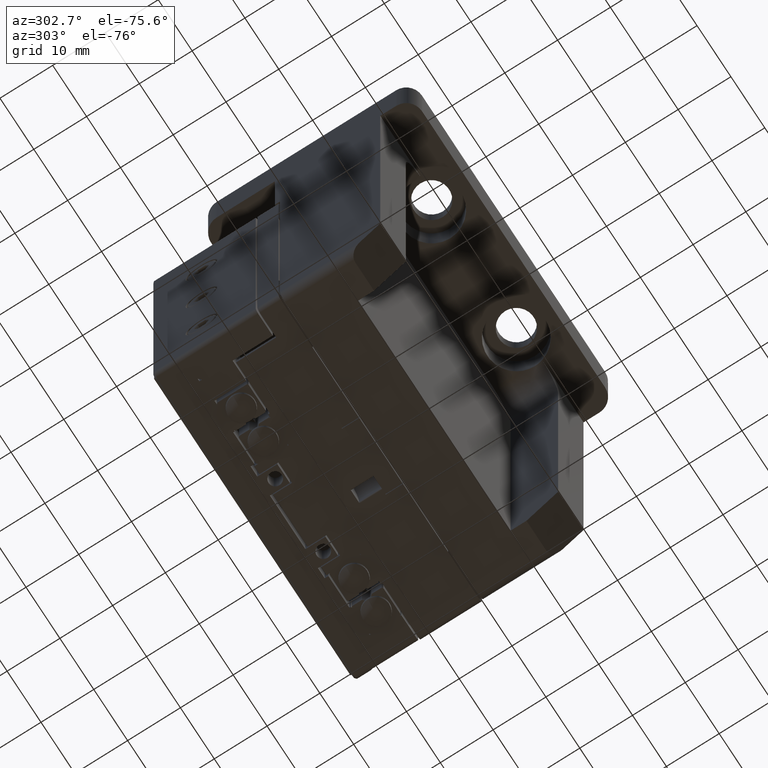
[diagram: clean part render]
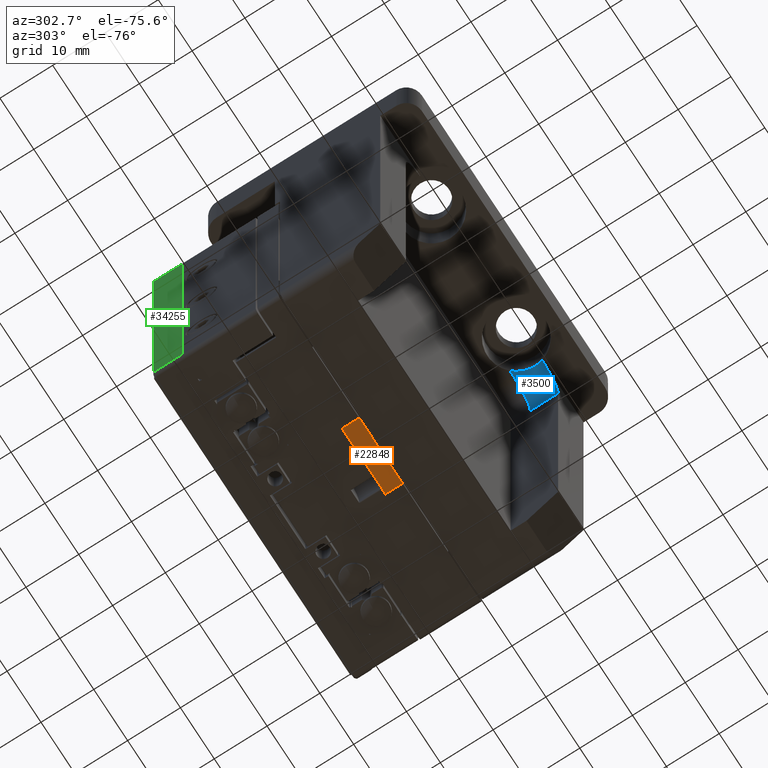
[diagram: same view with three faces highlighted in distinct colors, each labeled with its STEP entity id]
A machine part, auxiliary view with three faces highlighted in distinct colors.
Their STEP definitions:

[orange] entity #22848 — the highlighted planar face has unit normal (0, 0, 1).
#327 = DIRECTION ( 'NONE',  ( 1.000000000000000000, -6.982962677686266711E-15, -3.491481338843133355E-15 ) ) ;
#362 = DIRECTION ( 'NONE',  ( -6.982962677686266711E-15, -1.000000000000000000, 2.438088387897967896E-29 ) ) ;
#391 = FACE_OUTER_BOUND ( 'NONE', #31615, .T. ) ;
#1061 = VERTEX_POINT ( 'NONE', #34232 ) ;
#1591 = VERTEX_POINT ( 'NONE', #27273 ) ;
#2057 = DIRECTION ( 'NONE',  ( -1.000000000000000000, 6.982962677686266711E-15, 3.491481338843133355E-15 ) ) ;
#3485 = CARTESIAN_POINT ( 'NONE',  ( 8.758002419351393897, -9.325813218244359604, 30.00000000000159517 ) ) ;
#5848 = EDGE_CURVE ( 'NONE', #1591, #20111, #30753, .T. ) ;
#6218 = DIRECTION ( 'NONE',  ( 3.491481338843133355E-15, 0.000000000000000000, 1.000000000000000000 ) ) ;
#8126 = CARTESIAN_POINT ( 'NONE',  ( -4.041997580648604149, -9.325813218244270786, 30.00000000000164135 ) ) ;
#11050 = CARTESIAN_POINT ( 'NONE',  ( -18.14199758064860646, -9.325813218244171310, 30.00000000000168754 ) ) ;
#11266 = LINE ( 'NONE', #30743, #16485 ) ;
#11717 = VECTOR ( 'NONE', #327, 1000.000000000000000 ) ;
#12514 = EDGE_CURVE ( 'NONE', #32960, #1061, #11266, .T. ) ;
#14187 = CARTESIAN_POINT ( 'NONE',  ( -4.041997580648604149, -9.325813218244270786, 30.00000000000164135 ) ) ;
#16485 = VECTOR ( 'NONE', #22376, 1000.000000000000000 ) ;
#17482 = DIRECTION ( 'NONE',  ( -1.000000000000000000, 6.982962677686266711E-15, 3.491481338843133355E-15 ) ) ;
#18054 = CARTESIAN_POINT ( 'NONE',  ( 8.758002419351416989, -6.075813218244357827, 30.00000000000159517 ) ) ;
#20111 = VERTEX_POINT ( 'NONE', #8126 ) ;
#20520 = CARTESIAN_POINT ( 'NONE',  ( 8.758002419351415213, -6.075813218244357827, 30.00000000000159517 ) ) ;
#20522 = VECTOR ( 'NONE', #362, 1000.000000000000000 ) ;
#20562 = ORIENTED_EDGE ( 'NONE', *, *, #21873, .F. ) ;
#21512 = LINE ( 'NONE', #18054, #23158 ) ;
#21873 = EDGE_CURVE ( 'NONE', #32960, #1591, #21512, .T. ) ;
#22072 = AXIS2_PLACEMENT_3D ( 'NONE', #3485, #6218, #17482 ) ;
#22376 = DIRECTION ( 'NONE',  ( -6.982962677686266711E-15, -1.000000000000000000, 2.438088387897967896E-29 ) ) ;
#22411 = PLANE ( 'NONE',  #22072 ) ;
#22848 = ADVANCED_FACE ( 'NONE', ( #391 ), #22411, .F. ) ;
#23158 = VECTOR ( 'NONE', #2057, 1000.000000000000000 ) ;
#27273 = CARTESIAN_POINT ( 'NONE',  ( -4.041997580648580168, -6.075813218244268121, 30.00000000000164135 ) ) ;
#27498 = EDGE_CURVE ( 'NONE', #20111, #1061, #33777, .T. ) ;
#27815 = ORIENTED_EDGE ( 'NONE', *, *, #12514, .T. ) ;
#28176 = ORIENTED_EDGE ( 'NONE', *, *, #5848, .F. ) ;
#28448 = ORIENTED_EDGE ( 'NONE', *, *, #27498, .F. ) ;
#30743 = CARTESIAN_POINT ( 'NONE',  ( 8.758002419351393897, -9.325813218244359604, 30.00000000000159517 ) ) ;
#30753 = LINE ( 'NONE', #14187, #20522 ) ;
#31615 = EDGE_LOOP ( 'NONE', ( #28176, #20562, #27815, #28448 ) ) ;
#32960 = VERTEX_POINT ( 'NONE', #20520 ) ;
#33777 = LINE ( 'NONE', #11050, #11717 ) ;
#34232 = CARTESIAN_POINT ( 'NONE',  ( 8.758002419351393897, -9.325813218244359604, 30.00000000000159517 ) ) ;

[blue] entity #3500 — the highlighted face is a freeform B-spline surface patch.
#230 = CARTESIAN_POINT ( 'NONE',  ( -8.725082005708959088, 10.00000000000000888, -16.49999926704714426 ) ) ;
#247 = CARTESIAN_POINT ( 'NONE',  ( -8.725082005708960864, 16.00000073295286995, -22.50000000000000000 ) ) ;
#300 = CARTESIAN_POINT ( 'NONE',  ( -14.00000000000000178, 15.87299137656161818, -22.50000000000000000 ) ) ;
#590 = CARTESIAN_POINT ( 'NONE',  ( -14.00000000000001066, 10.40252404538229847, -19.08495630746240224 ) ) ;
#813 = DIRECTION ( 'NONE',  ( -0.000000000000000000, 1.000000000000000000, -0.000000000000000000 ) ) ;
#1367 = CARTESIAN_POINT ( 'NONE',  ( -12.18981853218765998, 11.16104714441558343, -22.49999999999999645 ) ) ;
#1543 = CARTESIAN_POINT ( 'NONE',  ( -9.869274921785844867, 10.70359600403043743, -22.49999999999999645 ) ) ;
#1729 = CARTESIAN_POINT ( 'NONE',  ( -10.27283085203395174, 15.92931351712504551, -22.50000000000000000 ) ) ;
#1926 = CARTESIAN_POINT ( 'NONE',  ( -13.56090707246400839, 15.84075435420029265, -22.50000000000000355 ) ) ;
#3144 = CARTESIAN_POINT ( 'NONE',  ( -14.00000000000001066, 15.18861880716654333, -22.50000000000000000 ) ) ;
#3500 = ADVANCED_FACE ( 'NONE', ( #21193 ), #30225, .F. ) ;
#4253 = CARTESIAN_POINT ( 'NONE',  ( -12.49999999999999645, 10.00000000000000888, -12.50000000000000000 ) ) ;
#4282 = CARTESIAN_POINT ( 'NONE',  ( -11.15725875708729475, 15.86087986452504239, -22.50000000000000000 ) ) ;
#4453 = CARTESIAN_POINT ( 'NONE',  ( -10.02718534839188003, 10.00000000089629104, -17.41929549260304100 ) ) ;
#4635 = CARTESIAN_POINT ( 'NONE',  ( -10.93615178068931471, 15.87745953175065416, -22.50000000000000000 ) ) ;
#4822 = CARTESIAN_POINT ( 'NONE',  ( -10.49024429794730828, 9.999999999103726722, -17.62593038959996505 ) ) ;
#5275 = AXIS2_PLACEMENT_3D ( 'NONE', #5537, #13880, #22973 ) ;
#5530 = CARTESIAN_POINT ( 'NONE',  ( -14.00000000000000711, 10.14759672400611556, -18.45981806019409532 ) ) ;
#5537 = CARTESIAN_POINT ( 'NONE',  ( -8.725082005708960864, 16.00000073295286640, -16.49999926704714426 ) ) ;
#6591 = EDGE_CURVE ( 'NONE', #8969, #30385, #19883, .T. ) ;
#7006 = CARTESIAN_POINT ( 'NONE',  ( -9.609509922191946885, 15.97650661757798929, -22.50000000000000000 ) ) ;
#7190 = CARTESIAN_POINT ( 'NONE',  ( -12.92611459001565066, 15.81373982999353522, -22.50000000000000000 ) ) ;
#7546 = CARTESIAN_POINT ( 'NONE',  ( -13.33819454395557180, 11.12470807175388465, -22.50000000000000000 ) ) ;
#7735 = CARTESIAN_POINT ( 'NONE',  ( -10.74363687550996005, 10.00000000092440899, -17.71963921749669169 ) ) ;
#8428 = CARTESIAN_POINT ( 'NONE',  ( -14.00000000000001066, 11.57429475723163570, -20.75174094839930206 ) ) ;
#8589 = VERTEX_POINT ( 'NONE', #23494 ) ;
#8969 = VERTEX_POINT ( 'NONE', #15079 ) ;
#9153 = ORIENTED_EDGE ( 'NONE', *, *, #16067, .F. ) ;
#9732 = CARTESIAN_POINT ( 'NONE',  ( -12.26279364716736531, 15.80979207260428332, -22.50000000000000000 ) ) ;
#9742 = CARTESIAN_POINT ( 'NONE',  ( -11.80348568889332661, 15.82048535675883016, -22.50000000000000000 ) ) ;
#9899 = DIRECTION ( 'NONE',  ( -0.000000000000000000, 1.000000000000000000, -0.000000000000000000 ) ) ;
#10268 = CARTESIAN_POINT ( 'NONE',  ( -13.05324418334256187, 11.14862536653532210, -22.50000000000038725 ) ) ;
#10426 = EDGE_LOOP ( 'NONE', ( #29552, #9153, #31348, #14301, #26161 ) ) ;
#10450 = CARTESIAN_POINT ( 'NONE',  ( -12.47868784095337169, 9.999999999766897574, -18.00831113625446989 ) ) ;
#11065 = CIRCLE ( 'NONE', #5275, 6.000000732952856630 ) ;
#11885 = EDGE_CURVE ( 'NONE', #30385, #20544, #23763, .T. ) ;
#12276 = CARTESIAN_POINT ( 'NONE',  ( -12.49999999999999645, 10.00000000000000888, -12.50000000000000000 ) ) ;
#12635 = CARTESIAN_POINT ( 'NONE',  ( -8.725082005708959088, 16.00000073295286640, -22.50000000000000000 ) ) ;
#12812 = CARTESIAN_POINT ( 'NONE',  ( -9.817390596435167538, 9.999999999403975437, -17.30650824101061502 ) ) ;
#12999 = CARTESIAN_POINT ( 'NONE',  ( -12.17204734674516509, 9.999999999501861581, -17.99840855172056209 ) ) ;
#13182 = CARTESIAN_POINT ( 'NONE',  ( -13.38304492231249299, 9.999999999183295074, -17.93640772279396245 ) ) ;
#13880 = DIRECTION ( 'NONE',  ( -1.000000000000000000, -3.614006800135580452E-16, 0.000000000000000000 ) ) ;
#14301 = ORIENTED_EDGE ( 'NONE', *, *, #19439, .F. ) ;
#15079 = CARTESIAN_POINT ( 'NONE',  ( -14.00000000000001066, 10.00000000000000888, -17.79150262212917255 ) ) ;
#15361 = CARTESIAN_POINT ( 'NONE',  ( -10.81258791073109826, 10.99049721763072007, -22.50000000000000000 ) ) ;
#15538 = CARTESIAN_POINT ( 'NONE',  ( -12.48390062730549488, 15.80791741027228881, -22.50000000000000000 ) ) ;
#15549 = CARTESIAN_POINT ( 'NONE',  ( -9.607579977953696115, 16.00000073295286640, -22.49999999999999645 ) ) ;
#15718 = CARTESIAN_POINT ( 'NONE',  ( -9.268394799540057960, 10.43009663186990466, -22.50000000000000355 ) ) ;
#16067 = EDGE_CURVE ( 'NONE', #8589, #8969, #34963, .T. ) ;
#16272 = VERTEX_POINT ( 'NONE', #230 ) ;
#17014 = CIRCLE ( 'NONE', #31522, 5.499999999999994671 ) ;
#17140 = CARTESIAN_POINT ( 'NONE',  ( -14.00000000000000178, 15.87299137656161818, -22.50000000000000000 ) ) ;
#17760 = CARTESIAN_POINT ( 'NONE',  ( -14.00000000000000178, 15.87299137656161818, -22.50000000000000000 ) ) ;
#18100 = CARTESIAN_POINT ( 'NONE',  ( -13.08434419655837644, 10.00000000023312374, -17.97727009209823024 ) ) ;
#18284 = CARTESIAN_POINT ( 'NONE',  ( -11.57578332325697623, 10.00000000049815974, -17.93008960534624663 ) ) ;
#18462 = CARTESIAN_POINT ( 'NONE',  ( -11.28642092641973527, 9.999999999075608770, -17.87184053464942579 ) ) ;
#18833 = CARTESIAN_POINT ( 'NONE',  ( -13.88637405764392874, 11.04965961176198164, -22.50000000000000000 ) ) ;
#19439 = EDGE_CURVE ( 'NONE', #20544, #16272, #11065, .T. ) ;
#19701 = CARTESIAN_POINT ( 'NONE',  ( -14.00000000000001243, 14.52380779905043617, -22.38682973456905145 ) ) ;
#19883 = B_SPLINE_CURVE_WITH_KNOTS ( 'NONE', 3,
 ( #30627, #5530, #590, #22074, #8428, #27887, #25329, #19701, #3144, #17140 ),
 .UNSPECIFIED., .F., .F.,
 ( 4, 2, 2, 2, 4 ),
 ( 0.000000000000000000, 0.002024080240144587092, 0.004048160480289174183, 0.006072240720433760841, 0.008096320960578348366 ),
 .UNSPECIFIED. ) ;
#20544 = VERTEX_POINT ( 'NONE', #247 ) ;
#20828 = CARTESIAN_POINT ( 'NONE',  ( -13.14722157258494839, 15.82142340286515569, -22.50000000000000000 ) ) ;
#21004 = CARTESIAN_POINT ( 'NONE',  ( -14.15092228700884291, 10.99812839818207877, -22.49999999999962341 ) ) ;
#21016 = CARTESIAN_POINT ( 'NONE',  ( -8.725082005708960864, 16.00000073295286995, -22.50000000000000000 ) ) ;
#21193 = FACE_OUTER_BOUND ( 'NONE', #10426, .T. ) ;
#21375 = CARTESIAN_POINT ( 'NONE',  ( -13.58943553956904893, 15.84405048605236743, -22.50000000000000000 ) ) ;
#21553 = CARTESIAN_POINT ( 'NONE',  ( -9.251479249720706122, 10.00000000119207755, -16.96013138322653901 ) ) ;
#22074 = CARTESIAN_POINT ( 'NONE',  ( -14.00000000000000711, 11.12560710754283733, -20.24669881837533580 ) ) ;
#22973 = DIRECTION ( 'NONE',  ( 2.891205440108464263E-16, -1.000000000000000000, 0.000000000000000000 ) ) ;
#23396 = CARTESIAN_POINT ( 'NONE',  ( -12.24303898811756142, 15.80539510103148793, -22.50000000000000000 ) ) ;
#23494 = CARTESIAN_POINT ( 'NONE',  ( -12.49999999999999645, 10.00000000000000888, -17.99999999999999645 ) ) ;
#23714 = DIRECTION ( 'NONE',  ( 0.000000000000000000, 0.000000000000000000, 1.000000000000000000 ) ) ;
#23735 = CARTESIAN_POINT ( 'NONE',  ( -8.958302429754168017, 10.00000000000000888, -16.72009631577791211 ) ) ;
#23763 = B_SPLINE_CURVE_WITH_KNOTS ( 'NONE', 3,
 ( #17760, #1926, #26836, #23396, #9742, #29211, #15549, #21016 ),
 .UNSPECIFIED., .F., .F.,
 ( 4, 2, 2, 4 ),
 ( 0.000000000000000000, 0.001318146914377059603, 0.002636293828754119207, 0.005272587657508242751 ),
 .UNSPECIFIED. ) ;
#25329 = CARTESIAN_POINT ( 'NONE',  ( -14.00000000000001066, 13.23326598949620880, -21.93439695576375925 ) ) ;
#26161 = ORIENTED_EDGE ( 'NONE', *, *, #11885, .F. ) ;
#26290 = CARTESIAN_POINT ( 'NONE',  ( -14.39747939653530651, 10.93553558321014130, -22.49999999999999289 ) ) ;
#26463 = CARTESIAN_POINT ( 'NONE',  ( -13.95050803263251638, 10.00000000081672269, -17.81322160134867261 ) ) ;
#26645 = CARTESIAN_POINT ( 'NONE',  ( -14.46676309072371858, 10.00000000000000888, -17.63632582153496742 ) ) ;
#26825 = CARTESIAN_POINT ( 'NONE',  ( -11.62253693675889465, 11.12075778282603622, -22.50000000000000000 ) ) ;
#26836 = CARTESIAN_POINT ( 'NONE',  ( -13.12174516145672065, 15.81569915537281013, -22.50000000000000355 ) ) ;
#27014 = CARTESIAN_POINT ( 'NONE',  ( -8.725082005708959088, 10.00000000000000888, -16.49999926704714426 ) ) ;
#27887 = CARTESIAN_POINT ( 'NONE',  ( -14.00000000000001243, 12.64204541268570203, -21.60681517927432083 ) ) ;
#29198 = CARTESIAN_POINT ( 'NONE',  ( -11.59947271132787883, 15.83340103088108641, -22.50000000000000000 ) ) ;
#29211 = CARTESIAN_POINT ( 'NONE',  ( -10.48450116838717960, 15.90317349486928755, -22.50000000000000000 ) ) ;
#29381 = CARTESIAN_POINT ( 'NONE',  ( -11.34375854622099844, 11.08593647760974221, -22.50000000000000000 ) ) ;
#29552 = ORIENTED_EDGE ( 'NONE', *, *, #6591, .F. ) ;
#29556 = CARTESIAN_POINT ( 'NONE',  ( -10.08766956723822261, 10.78622038702381936, -22.50000000000000000 ) ) ;
#29737 = CARTESIAN_POINT ( 'NONE',  ( -12.47989607927875433, 11.16674233481644585, -22.49999999999961631 ) ) ;
#30225 =( BOUNDED_SURFACE ( )  B_SPLINE_SURFACE ( 3, 2, ( 
 ( #34820, #26290, #26645 ),
 ( #32290, #21004, #32102 ),
 ( #21375, #18833, #26463 ),
 ( #20828, #7546, #13182 ),
 ( #7190, #10268, #18100 ),
 ( #15538, #29737, #10450 ),
 ( #9732, #1367, #12999 ),
 ( #32468, #26825, #18284 ),
 ( #29198, #29381, #18462 ),
 ( #4282, #15361, #7735 ),
 ( #4635, #34996, #4822 ),
 ( #31924, #29556, #4453 ),
 ( #1729, #1543, #12812 ),
 ( #7006, #15718, #21553 ),
 ( #34643, #35182, #23735 ),
 ( #12635, #32648, #27014 ) ),
 .UNSPECIFIED., .F., .F., .F. ) 
 B_SPLINE_SURFACE_WITH_KNOTS ( ( 4, 2, 2, 2, 2, 2, 2, 4 ),
 ( 3, 3 ),
 ( 0.01092135062008226312, 0.01157917658550943092, 0.01223700255093659872, 0.01289482851636376479, 0.01355265448179093259, 0.01421048044721810039, 0.01486830641264526645, 0.01618395834349960205 ),
 ( 0.000000000000000000, 1.000000000000000000 ),
 .UNSPECIFIED. ) 
 GEOMETRIC_REPRESENTATION_ITEM ( )  RATIONAL_B_SPLINE_SURFACE ( (
 ( 1.000000000000000000, 0.7711639695764849201, 1.000000000000000000),
 ( 1.000000000000000000, 0.7762891284655438762, 1.000000000000000000),
 ( 1.000000000000000000, 0.7806701595877770794, 1.000000000000000000),
 ( 1.000000000000000000, 0.7872175093347962838, 1.000000000000000000),
 ( 1.000000000000000000, 0.7893709880737428408, 1.000000000000000000),
 ( 1.000000000000000000, 0.7910077813748576103, 1.000000000000000000),
 ( 1.000000000000000000, 0.7904876229166801771, 1.000000000000000000),
 ( 1.000000000000000000, 0.7868782860821661451, 1.000000000000000000),
 ( 1.000000000000000000, 0.7837962930905250092, 1.000000000000000000),
 ( 1.000000000000000000, 0.7756630630903070811, 1.000000000000000000),
 ( 1.000000000000000000, 0.7706226373127039730, 1.000000000000000000),
 ( 1.000000000000000000, 0.7593679453525518097, 1.000000000000000000),
 ( 1.000000000000000000, 0.7531603944734329703, 1.000000000000000000),
 ( 1.000000000000000000, 0.7338326550638799572, 1.000000000000000000),
 ( 1.000000000000000000, 0.7200643467484586502, 1.000000000000000000),
 ( 1.000000000000000000, 0.7071067811865475727, 1.000000000000000000) ) ) 
 REPRESENTATION_ITEM ( '' )  SURFACE ( )  );
#30385 = VERTEX_POINT ( 'NONE', #300 ) ;
#30627 = CARTESIAN_POINT ( 'NONE',  ( -14.00000000000001066, 10.00000000000000888, -17.79150262212917255 ) ) ;
#31348 = ORIENTED_EDGE ( 'NONE', *, *, #31613, .F. ) ;
#31522 = AXIS2_PLACEMENT_3D ( 'NONE', #12276, #9899, #34815 ) ;
#31613 = EDGE_CURVE ( 'NONE', #16272, #8589, #17014, .T. ) ;
#31924 = CARTESIAN_POINT ( 'NONE',  ( -10.49393782816710186, 15.91169362142815658, -22.50000000000000000 ) ) ;
#32102 = CARTESIAN_POINT ( 'NONE',  ( -14.21928708091704863, 10.00000000190480343, -17.73108747595971835 ) ) ;
#32290 = CARTESIAN_POINT ( 'NONE',  ( -13.81054108759030008, 15.85895045771563616, -22.50000000000000000 ) ) ;
#32468 = CARTESIAN_POINT ( 'NONE',  ( -11.82057968918232405, 15.82254802984500408, -22.50000000000000000 ) ) ;
#32648 = CARTESIAN_POINT ( 'NONE',  ( -8.725082005708959088, 10.00000000000000888, -22.49999999999999645 ) ) ;
#34406 = AXIS2_PLACEMENT_3D ( 'NONE', #4253, #813, #23714 ) ;
#34643 = CARTESIAN_POINT ( 'NONE',  ( -9.167295966982207389, 16.00000072808626328, -22.50000000000000000 ) ) ;
#34815 = DIRECTION ( 'NONE',  ( 0.000000000000000000, 0.000000000000000000, 1.000000000000000000 ) ) ;
#34820 = CARTESIAN_POINT ( 'NONE',  ( -14.03164950875316919, 15.87532526144599920, -22.50000000000000000 ) ) ;
#34963 = CIRCLE ( 'NONE', #34406, 5.499999999999994671 ) ;
#34996 = CARTESIAN_POINT ( 'NONE',  ( -10.55919056346775520, 10.92943000971505541, -22.50000000000000000 ) ) ;
#35182 = CARTESIAN_POINT ( 'NONE',  ( -8.954452817526263431, 10.21646405132398172, -22.50000000000000000 ) ) ;

[green] entity #34255 — the highlighted planar face has unit normal (1, 0, -0).
#194 = CARTESIAN_POINT ( 'NONE',  ( -27.89199758064840040, 8.874186781755703635, 31.02513947737028133 ) ) ;
#1322 = VERTEX_POINT ( 'NONE', #194 ) ;
#1833 = VECTOR ( 'NONE', #8385, 1000.000000000000000 ) ;
#2335 = DIRECTION ( 'NONE',  ( -6.982962677686266711E-15, 0.000000000000000000, -1.000000000000000000 ) ) ;
#6491 = DIRECTION ( 'NONE',  ( -0.000000000000000000, -1.000000000000000000, -0.000000000000000000 ) ) ;
#6883 = FACE_OUTER_BOUND ( 'NONE', #20917, .T. ) ;
#7133 = LINE ( 'NONE', #29331, #23008 ) ;
#8385 = DIRECTION ( 'NONE',  ( 0.000000000000000000, 1.000000000000000000, 0.000000000000000000 ) ) ;
#9216 = CARTESIAN_POINT ( 'NONE',  ( -27.89199758064799539, 14.57418678175570470, 89.02513947737030264 ) ) ;
#10978 = ORIENTED_EDGE ( 'NONE', *, *, #20565, .T. ) ;
#11595 = EDGE_CURVE ( 'NONE', #33065, #12644, #7133, .T. ) ;
#11842 = CARTESIAN_POINT ( 'NONE',  ( -27.89199758064799539, 8.874186781755703635, 89.02513947737030264 ) ) ;
#12644 = VERTEX_POINT ( 'NONE', #33808 ) ;
#12711 = VECTOR ( 'NONE', #31513, 1000.000000000000000 ) ;
#12980 = EDGE_CURVE ( 'NONE', #33065, #23021, #23226, .T. ) ;
#14227 = ORIENTED_EDGE ( 'NONE', *, *, #12980, .F. ) ;
#15236 = CARTESIAN_POINT ( 'NONE',  ( -27.89199758064840751, 14.57418678175570470, 30.02513947737030264 ) ) ;
#16134 = CARTESIAN_POINT ( 'NONE',  ( -27.89199758064562928, 14.27418678176813671, 89.02513947737030264 ) ) ;
#17900 = EDGE_CURVE ( 'NONE', #1322, #12644, #24763, .T. ) ;
#17979 = PLANE ( 'NONE',  #28811 ) ;
#19360 = ORIENTED_EDGE ( 'NONE', *, *, #17900, .F. ) ;
#20565 = EDGE_CURVE ( 'NONE', #1322, #23021, #28252, .T. ) ;
#20917 = EDGE_LOOP ( 'NONE', ( #10978, #14227, #23603, #19360 ) ) ;
#21431 = DIRECTION ( 'NONE',  ( 1.000000000000000000, 0.000000000000000000, -6.982962677686266711E-15 ) ) ;
#21609 = DIRECTION ( 'NONE',  ( -6.982962677686266711E-15, 0.000000000000000000, -1.000000000000000000 ) ) ;
#23008 = VECTOR ( 'NONE', #21609, 1000.000000000000000 ) ;
#23021 = VERTEX_POINT ( 'NONE', #11842 ) ;
#23226 = LINE ( 'NONE', #9216, #29296 ) ;
#23603 = ORIENTED_EDGE ( 'NONE', *, *, #11595, .T. ) ;
#24763 = LINE ( 'NONE', #35843, #1833 ) ;
#28252 = LINE ( 'NONE', #31702, #12711 ) ;
#28811 = AXIS2_PLACEMENT_3D ( 'NONE', #15236, #21431, #2335 ) ;
#29296 = VECTOR ( 'NONE', #6491, 1000.000000000000000 ) ;
#29331 = CARTESIAN_POINT ( 'NONE',  ( -27.89199758064366819, 14.27418678176044153, 30.02513947737030264 ) ) ;
#31513 = DIRECTION ( 'NONE',  ( 6.982962677686266711E-15, -0.000000000000000000, 1.000000000000000000 ) ) ;
#31702 = CARTESIAN_POINT ( 'NONE',  ( -27.89199758064840751, 8.874186781755703635, 30.02513947737030264 ) ) ;
#33065 = VERTEX_POINT ( 'NONE', #16134 ) ;
#33808 = CARTESIAN_POINT ( 'NONE',  ( -27.89199758064603429, 14.27418678176872646, 31.02513947737028133 ) ) ;
#34255 = ADVANCED_FACE ( 'NONE', ( #6883 ), #17979, .F. ) ;
#35843 = CARTESIAN_POINT ( 'NONE',  ( -27.89199758064840040, 14.57418678175570470, 31.02513947737028133 ) ) ;